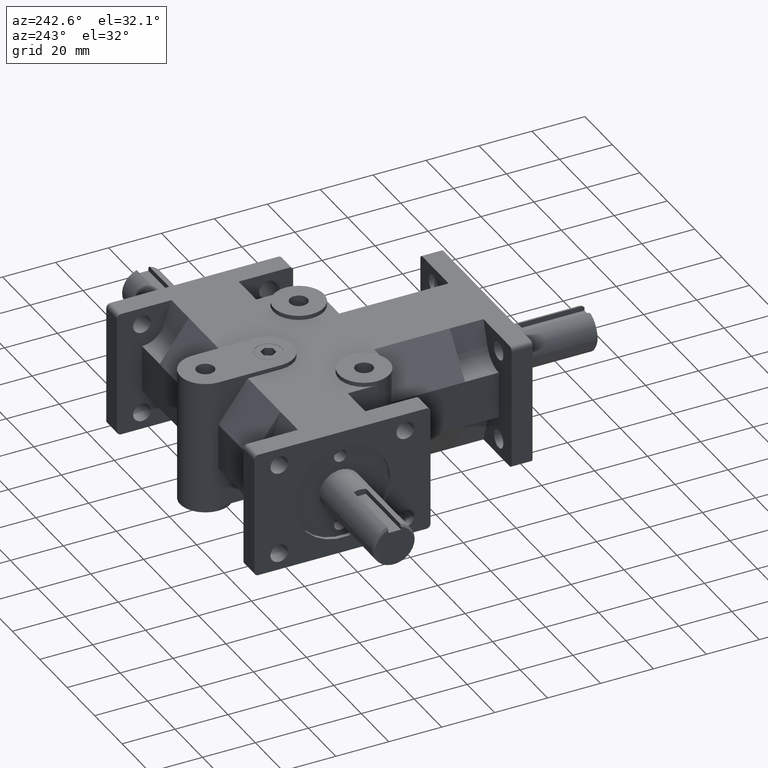
[diagram: clean part render]
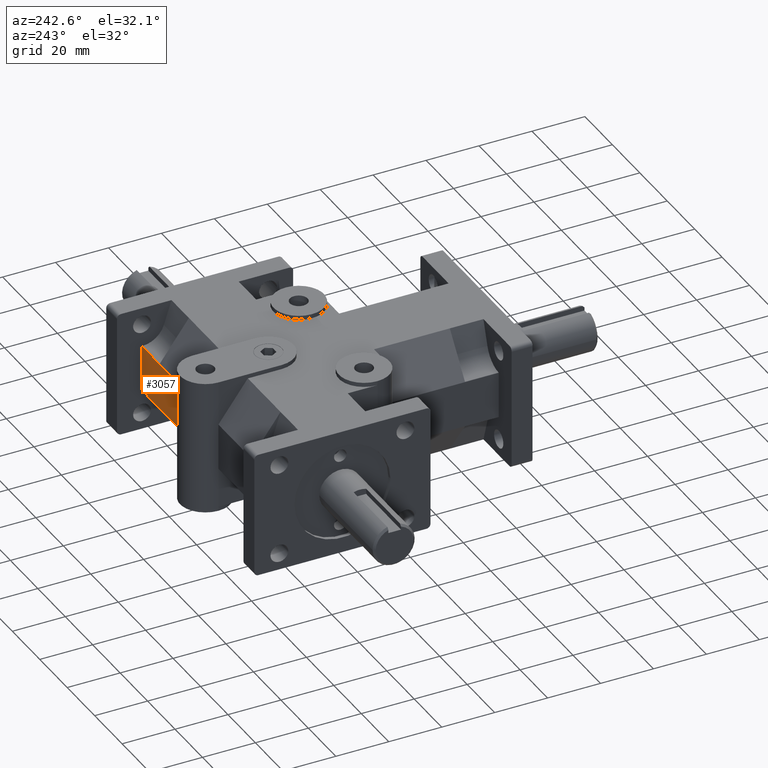
[diagram: same view with one face highlighted and labeled with its STEP entity id]
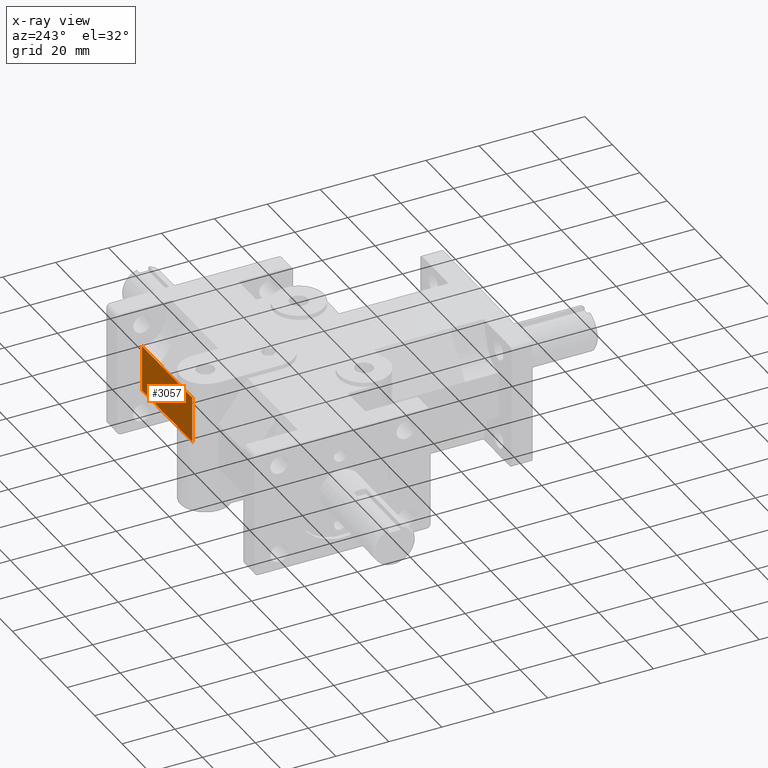
[diagram: x-ray of the same camera — body ghosted, the highlighted face saturated]
A machine part, auxiliary view. The second image highlights one B-rep face of the part: STEP entity #3057.
The next image is the same camera in x-ray: the body ghosted, the highlighted face saturated — about 0% of this face is hidden behind the body in this view.
In plain terms, the highlighted planar face has unit normal (0, 1, 0).
Its self-contained STEP definition (entity closure, byte-faithful):
#158=PLANE('',#3369);
#327=FACE_OUTER_BOUND('',#525,.T.);
#525=EDGE_LOOP('',(#2702,#2703,#2704,#2705));
#597=LINE('',#4472,#893);
#695=LINE('',#4726,#991);
#802=LINE('',#5067,#1098);
#837=LINE('',#5135,#1133);
#893=VECTOR('',#3582,1.);
#991=VECTOR('',#3810,1.);
#1098=VECTOR('',#4153,1.);
#1133=VECTOR('',#4224,1.);
#1353=VERTEX_POINT('',#4469);
#1354=VERTEX_POINT('',#4471);
#1445=VERTEX_POINT('',#4724);
#1543=VERTEX_POINT('',#5066);
#1642=EDGE_CURVE('',#1354,#1353,#597,.T.);
#1771=EDGE_CURVE('',#1445,#1353,#695,.T.);
#1933=EDGE_CURVE('',#1445,#1543,#802,.T.);
#1971=EDGE_CURVE('',#1354,#1543,#837,.T.);
#2702=ORIENTED_EDGE('',*,*,#1933,.T.);
#2703=ORIENTED_EDGE('',*,*,#1971,.F.);
#2704=ORIENTED_EDGE('',*,*,#1642,.T.);
#2705=ORIENTED_EDGE('',*,*,#1771,.F.);
#3057=ADVANCED_FACE('',(#327),#158,.T.);
#3369=AXIS2_PLACEMENT_3D('',#5137,#4226,#4227);
#3582=DIRECTION('',(0.,0.,-1.));
#3810=DIRECTION('',(1.,0.,0.));
#4153=DIRECTION('',(0.,0.,1.));
#4224=DIRECTION('',(-1.,0.,0.));
#4226=DIRECTION('center_axis',(0.,1.,0.));
#4227=DIRECTION('ref_axis',(0.,0.,-1.));
#4469=CARTESIAN_POINT('',(1.815,4.1875,-0.34375));
#4471=CARTESIAN_POINT('',(1.815,4.1875,0.34375));
#4472=CARTESIAN_POINT('',(1.815,4.1875,0.));
#4724=CARTESIAN_POINT('',(0.375,4.1875,-0.343749999999998));
#4726=CARTESIAN_POINT('',(-0.1875,4.1875,-0.34375));
#5066=CARTESIAN_POINT('',(0.375,4.1875,0.343749999999998));
#5067=CARTESIAN_POINT('',(0.375,4.1875,0.));
#5135=CARTESIAN_POINT('',(-0.1875,4.1875,0.34375));
#5137=CARTESIAN_POINT('Origin',(-0.375,4.1875,0.));